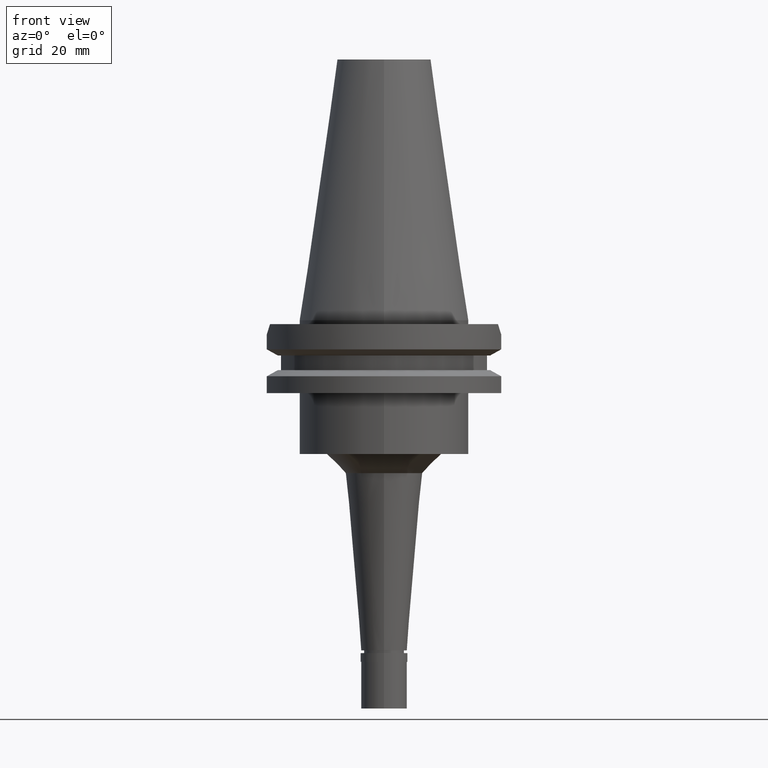
[diagram: clean part render]
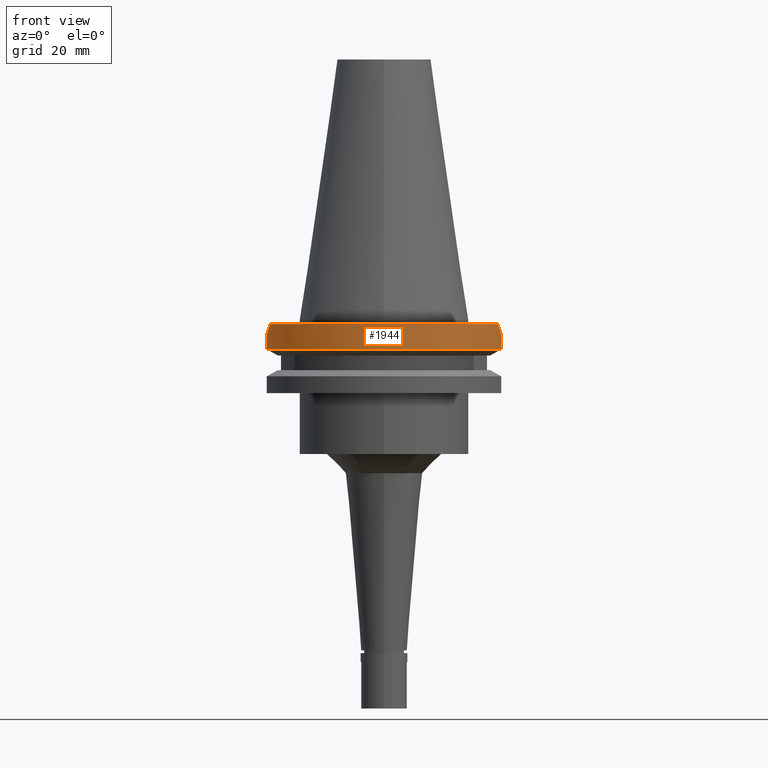
[diagram: same view with one face highlighted and labeled with its STEP entity id]
A machine part, front view. The second image highlights one B-rep face of the part: STEP entity #1944.
In plain terms, the highlighted cylindrical surface (partial cylindrical patch) has radius 31.75 mm, axis along (0, 0, -1).
Its self-contained STEP definition (entity closure, byte-faithful):
#60 = AXIS2_PLACEMENT_3D ( 'NONE', #2870, #681, #2074 ) ;
#165 = CARTESIAN_POINT ( 'NONE',  ( 29.82399034335000110, -10.89000000000000057, -1.000000000001000089 ) ) ;
#199 = CARTESIAN_POINT ( 'NONE',  ( 30.67550146398999900, -8.190000606402000116, -7.601327811763000319 ) ) ;
#304 = CARTESIAN_POINT ( 'NONE',  ( -30.67550165945999652, -8.189999874275001090, -7.601334354452000674 ) ) ;
#317 = LINE ( 'NONE', #2043, #1167 ) ;
#444 = DIRECTION ( 'NONE',  ( 8.604109930353995537E-09, -3.222609851570997977E-08, 0.9999999999999994449 ) ) ;
#461 = CARTESIAN_POINT ( 'NONE',  ( -30.67550165945999652, -8.189999874275001090, -7.601334354452000674 ) ) ;
#471 = VERTEX_POINT ( 'NONE', #199 ) ;
#472 = CARTESIAN_POINT ( 'NONE',  ( -30.14799306409551960, -10.00266721625513888, -1.887332783744861908 ) ) ;
#501 = ORIENTED_EDGE ( 'NONE', *, *, #652, .F. ) ;
#565 = FACE_OUTER_BOUND ( 'NONE', #2913, .T. ) ;
#570 = ORIENTED_EDGE ( 'NONE', *, *, #1558, .T. ) ;
#585 = DIRECTION ( 'NONE',  ( 0.0000000000000000000, -1.000000000000000000, 0.0000000000000000000 ) ) ;
#622 = B_SPLINE_CURVE_WITH_KNOTS ( 'NONE', 3,
 ( #1478, #3186, #472, #3154 ),
 .UNSPECIFIED., .F., .F.,
 ( 4, 4 ),
 ( 0.0000000000000000000, 1.000000000000000000 ),
 .UNSPECIFIED. ) ;
#652 = EDGE_CURVE ( 'NONE', #1833, #2411, #2336, .T. ) ;
#674 = CARTESIAN_POINT ( 'NONE',  ( -30.67550162588999640, -8.189999999999999503, -3.700000000000000178 ) ) ;
#681 = DIRECTION ( 'NONE',  ( 0.0000000000000000000, 0.0000000000000000000, 1.000000000000000000 ) ) ;
#784 = VERTEX_POINT ( 'NONE', #674 ) ;
#792 = DIRECTION ( 'NONE',  ( 0.0000000000000000000, -1.000000000000000000, 0.0000000000000000000 ) ) ;
#807 = CARTESIAN_POINT ( 'NONE',  ( 0.0000000000000000000, 2.162022075384999775E-14, 76.54250000000000398 ) ) ;
#818 = CYLINDRICAL_SURFACE ( 'NONE', #2844, 31.75000000000000000 ) ;
#1148 = ORIENTED_EDGE ( 'NONE', *, *, #1755, .T. ) ;
#1167 = VECTOR ( 'NONE', #2271, 1000.000000000000227 ) ;
#1169 = CARTESIAN_POINT ( 'NONE',  ( 30.14799306409552671, -10.00266721625513888, -1.887332783744861908 ) ) ;
#1478 = CARTESIAN_POINT ( 'NONE',  ( -30.67550162588999640, -8.189999999999999503, -3.700000000000000178 ) ) ;
#1508 = VERTEX_POINT ( 'NONE', #304 ) ;
#1558 = EDGE_CURVE ( 'NONE', #1833, #1723, #1678, .T. ) ;
#1575 = AXIS2_PLACEMENT_3D ( 'NONE', #1806, #2783, #585 ) ;
#1583 = CARTESIAN_POINT ( 'NONE',  ( 30.43183015827552396, -9.102667216255303728, -2.787332783744696840 ) ) ;
#1678 = CIRCLE ( 'NONE', #1575, 31.75000000000000000 ) ;
#1688 = LINE ( 'NONE', #461, #2957 ) ;
#1723 = VERTEX_POINT ( 'NONE', #2356 ) ;
#1751 = CARTESIAN_POINT ( 'NONE',  ( 29.82399034335000110, -10.89000000000000057, -1.000000000001000089 ) ) ;
#1755 = EDGE_CURVE ( 'NONE', #1508, #471, #3000, .T. ) ;
#1791 = EDGE_CURVE ( 'NONE', #784, #1723, #622, .T. ) ;
#1793 = DIRECTION ( 'NONE',  ( 0.0000000000000000000, 0.0000000000000000000, -1.000000000000000000 ) ) ;
#1806 = CARTESIAN_POINT ( 'NONE',  ( 0.0000000000000000000, 2.162022075384999775E-14, -0.9999999999999000799 ) ) ;
#1833 = VERTEX_POINT ( 'NONE', #1751 ) ;
#1944 = ADVANCED_FACE ( 'NONE', ( #565 ), #818, .T. ) ;
#1945 = CARTESIAN_POINT ( 'NONE',  ( 30.67550162588999640, -8.189999999999999503, -3.700000000000000178 ) ) ;
#2020 = EDGE_CURVE ( 'NONE', #2411, #471, #317, .T. ) ;
#2043 = CARTESIAN_POINT ( 'NONE',  ( 30.67550162588999640, -8.189999999999999503, -3.700000000000000178 ) ) ;
#2050 = ORIENTED_EDGE ( 'NONE', *, *, #2657, .F. ) ;
#2074 = DIRECTION ( 'NONE',  ( -0.9661575315241073270, -0.2579527559055020958, 0.0000000000000000000 ) ) ;
#2238 = ORIENTED_EDGE ( 'NONE', *, *, #1791, .F. ) ;
#2271 = DIRECTION ( 'NONE',  ( -4.149915635311944296E-08, -1.554347915578980106E-07, -0.9999999999999870104 ) ) ;
#2336 = B_SPLINE_CURVE_WITH_KNOTS ( 'NONE', 3,
 ( #165, #1169, #1583, #1945 ),
 .UNSPECIFIED., .F., .F.,
 ( 4, 4 ),
 ( 0.0000000000000000000, 1.000000000000000000 ),
 .UNSPECIFIED. ) ;
#2356 = CARTESIAN_POINT ( 'NONE',  ( -29.82399034335000110, -10.89000000000000057, -1.000000000001000089 ) ) ;
#2399 = CARTESIAN_POINT ( 'NONE',  ( 30.67550162588999640, -8.189999999999999503, -3.700000000000000178 ) ) ;
#2411 = VERTEX_POINT ( 'NONE', #2399 ) ;
#2657 = EDGE_CURVE ( 'NONE', #1508, #784, #1688, .T. ) ;
#2668 = ORIENTED_EDGE ( 'NONE', *, *, #2020, .F. ) ;
#2783 = DIRECTION ( 'NONE',  ( 0.0000000000000000000, 0.0000000000000000000, -1.000000000000000000 ) ) ;
#2844 = AXIS2_PLACEMENT_3D ( 'NONE', #807, #1793, #792 ) ;
#2870 = CARTESIAN_POINT ( 'NONE',  ( 0.0000000000000000000, 1.121722380078999823E-14, -7.601333230925999551 ) ) ;
#2913 = EDGE_LOOP ( 'NONE', ( #501, #570, #2238, #2050, #1148, #2668 ) ) ;
#2957 = VECTOR ( 'NONE', #444, 1000.000000000000114 ) ;
#3000 = CIRCLE ( 'NONE', #60, 31.74999999999998579 ) ;
#3154 = CARTESIAN_POINT ( 'NONE',  ( -29.82399034335000110, -10.89000000000000057, -1.000000000001000089 ) ) ;
#3186 = CARTESIAN_POINT ( 'NONE',  ( -30.43183015827552040, -9.102667216255303728, -2.787332783744696840 ) ) ;